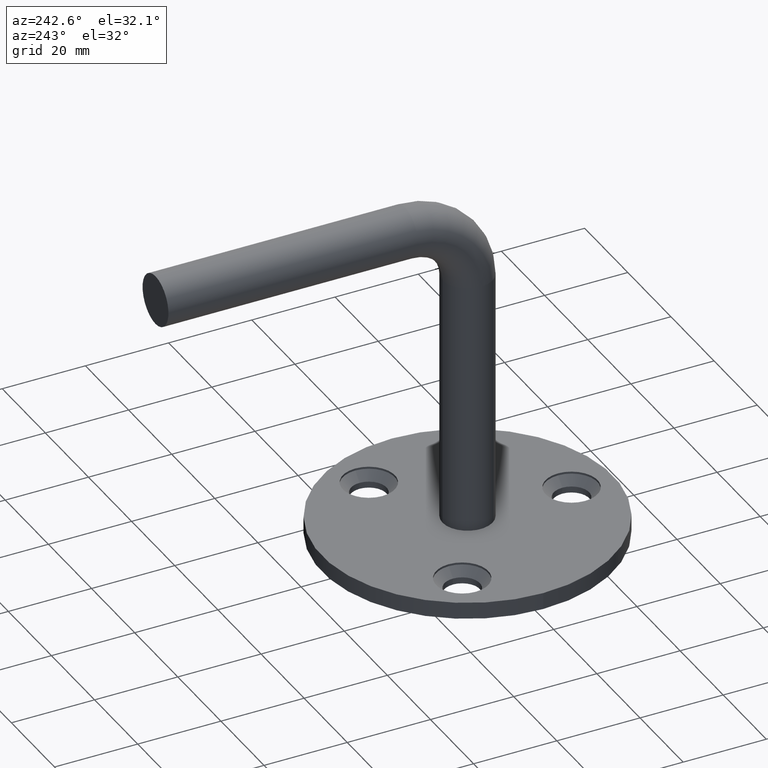
[diagram: clean part render]
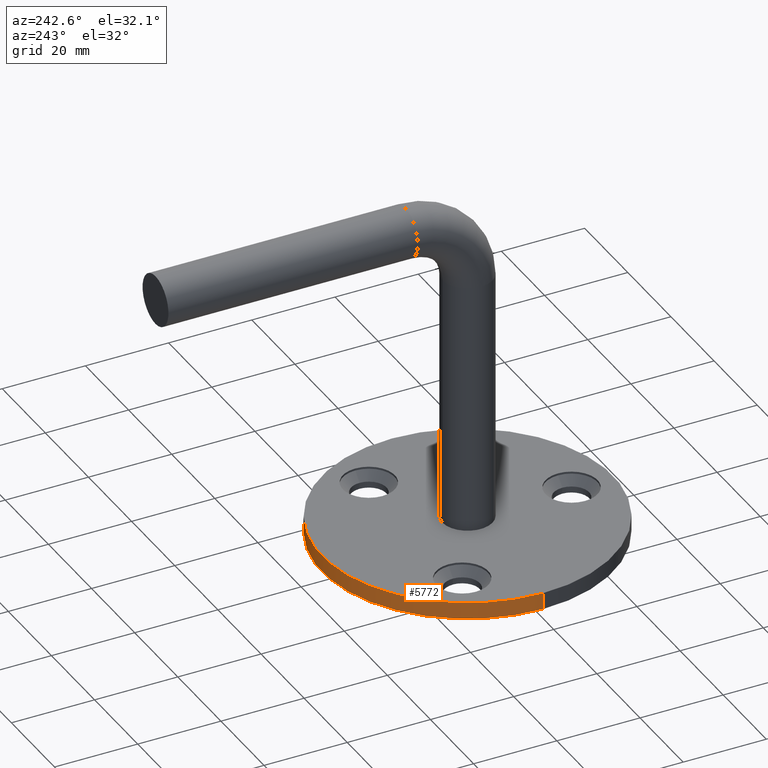
[diagram: same view with one face highlighted and labeled with its STEP entity id]
A machine part, auxiliary view. The second image highlights one B-rep face of the part: STEP entity #5772.
In plain terms, the highlighted cylindrical surface (partial cylindrical patch) has radius 35 mm, axis along (-0, -0, -1).
Its self-contained STEP definition (entity closure, byte-faithful):
#689 = CIRCLE ( 'NONE', #10230, 35.00000000000000711 ) ;
#913 = AXIS2_PLACEMENT_3D ( 'NONE', #4244, #16277, #13524 ) ;
#1284 = LINE ( 'NONE', #9489, #8047 ) ;
#1375 = DIRECTION ( 'NONE',  ( -0.000000000000000000, -0.000000000000000000, -1.000000000000000000 ) ) ;
#2797 = VERTEX_POINT ( 'NONE', #12531 ) ;
#3576 = EDGE_CURVE ( 'NONE', #15118, #5303, #9605, .T. ) ;
#3601 = DIRECTION ( 'NONE',  ( 1.000000000000000000, 0.000000000000000000, 0.000000000000000000 ) ) ;
#4244 = CARTESIAN_POINT ( 'NONE',  ( 0.000000000000000000, 0.000000000000000000, 0.000000000000000000 ) ) ;
#5303 = VERTEX_POINT ( 'NONE', #12305 ) ;
#5772 = ADVANCED_FACE ( 'NONE', ( #16669 ), #6200, .T. ) ;
#6060 = VECTOR ( 'NONE', #10072, 1000.000000000000000 ) ;
#6200 = CYLINDRICAL_SURFACE ( 'NONE', #7328, 35.00000000000000711 ) ;
#6539 = EDGE_CURVE ( 'NONE', #9144, #15118, #689, .T. ) ;
#7136 = CARTESIAN_POINT ( 'NONE',  ( 0.000000000000000000, 0.000000000000000000, 4.000000000000000000 ) ) ;
#7328 = AXIS2_PLACEMENT_3D ( 'NONE', #7136, #8474, #12802 ) ;
#7632 = CIRCLE ( 'NONE', #913, 35.00000000000000711 ) ;
#8047 = VECTOR ( 'NONE', #1375, 1000.000000000000000 ) ;
#8448 = CARTESIAN_POINT ( 'NONE',  ( -35.00000000000000711, 0.000000000000000000, 4.000000000000000000 ) ) ;
#8474 = DIRECTION ( 'NONE',  ( -0.000000000000000000, -0.000000000000000000, -1.000000000000000000 ) ) ;
#8517 = ORIENTED_EDGE ( 'NONE', *, *, #6539, .F. ) ;
#8974 = EDGE_CURVE ( 'NONE', #9144, #2797, #1284, .T. ) ;
#9144 = VERTEX_POINT ( 'NONE', #14063 ) ;
#9489 = CARTESIAN_POINT ( 'NONE',  ( 35.00000000000000711, 4.286263797015737285E-15, 4.000000000000000000 ) ) ;
#9605 = LINE ( 'NONE', #12778, #6060 ) ;
#10072 = DIRECTION ( 'NONE',  ( -0.000000000000000000, -0.000000000000000000, -1.000000000000000000 ) ) ;
#10162 = EDGE_LOOP ( 'NONE', ( #8517, #11576, #15338, #10818 ) ) ;
#10230 = AXIS2_PLACEMENT_3D ( 'NONE', #15509, #11711, #3601 ) ;
#10818 = ORIENTED_EDGE ( 'NONE', *, *, #3576, .F. ) ;
#11576 = ORIENTED_EDGE ( 'NONE', *, *, #8974, .T. ) ;
#11711 = DIRECTION ( 'NONE',  ( 0.000000000000000000, 0.000000000000000000, 1.000000000000000000 ) ) ;
#12305 = CARTESIAN_POINT ( 'NONE',  ( -35.00000000000000711, 0.000000000000000000, 0.000000000000000000 ) ) ;
#12531 = CARTESIAN_POINT ( 'NONE',  ( 35.00000000000000711, 4.286263797015737285E-15, 0.000000000000000000 ) ) ;
#12778 = CARTESIAN_POINT ( 'NONE',  ( -35.00000000000000711, 0.000000000000000000, 4.000000000000000000 ) ) ;
#12802 = DIRECTION ( 'NONE',  ( -1.000000000000000000, 0.000000000000000000, 0.000000000000000000 ) ) ;
#13524 = DIRECTION ( 'NONE',  ( 1.000000000000000000, 0.000000000000000000, 0.000000000000000000 ) ) ;
#14063 = CARTESIAN_POINT ( 'NONE',  ( 35.00000000000000711, 4.286263797015737285E-15, 4.000000000000000000 ) ) ;
#14177 = EDGE_CURVE ( 'NONE', #2797, #5303, #7632, .T. ) ;
#15118 = VERTEX_POINT ( 'NONE', #8448 ) ;
#15338 = ORIENTED_EDGE ( 'NONE', *, *, #14177, .T. ) ;
#15509 = CARTESIAN_POINT ( 'NONE',  ( 0.000000000000000000, 0.000000000000000000, 4.000000000000000000 ) ) ;
#16277 = DIRECTION ( 'NONE',  ( 0.000000000000000000, 0.000000000000000000, 1.000000000000000000 ) ) ;
#16669 = FACE_OUTER_BOUND ( 'NONE', #10162, .T. ) ;